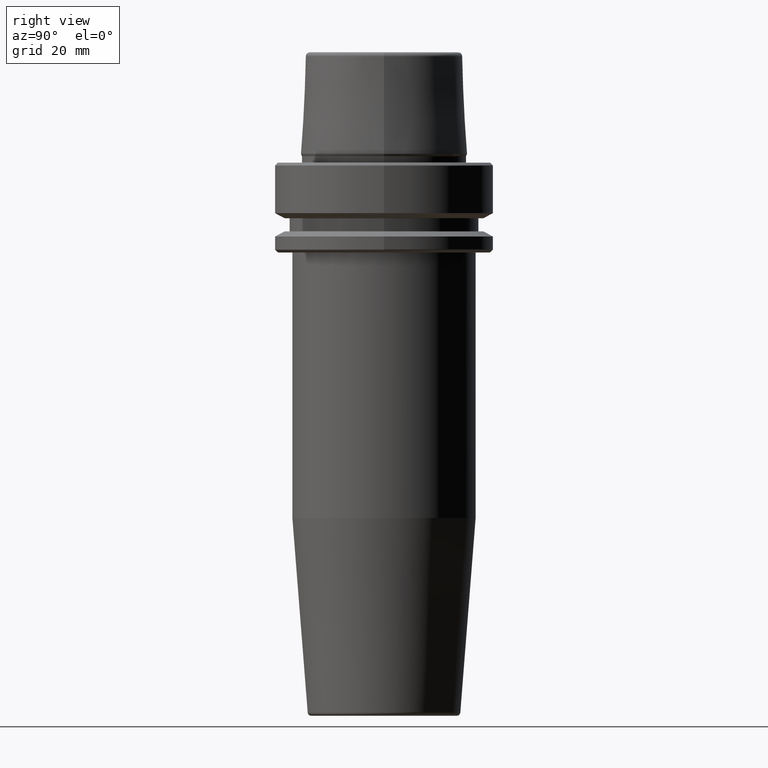
[diagram: clean part render]
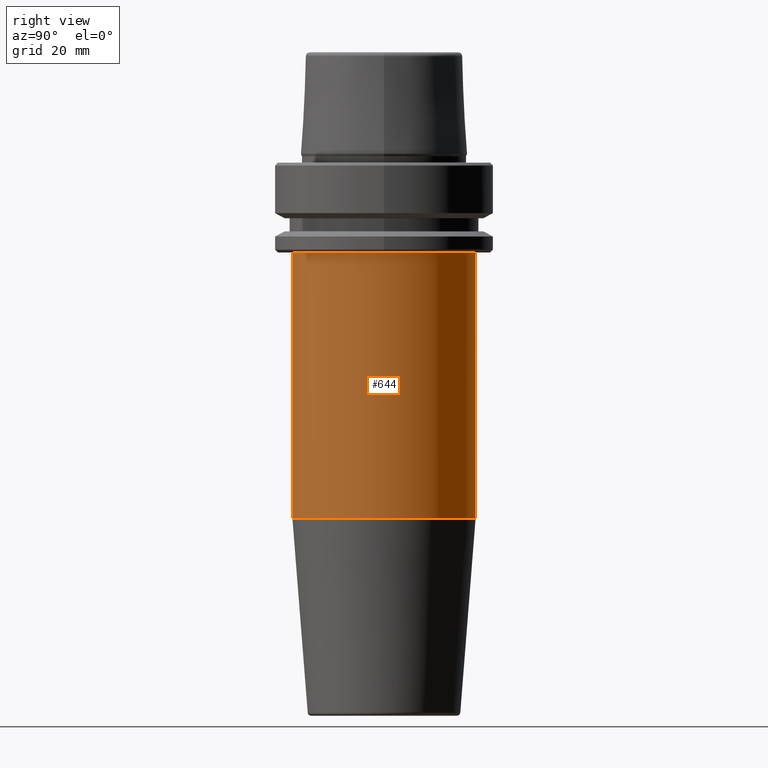
[diagram: same view with one face highlighted and labeled with its STEP entity id]
A machine part, right view. The second image highlights one B-rep face of the part: STEP entity #644.
In plain terms, the highlighted cylindrical surface (partial cylindrical patch) has radius 26.5 mm, axis along (-0, 0, -1).
Its self-contained STEP definition (entity closure, byte-faithful):
#3 = VERTEX_POINT ( 'NONE', #861 ) ;
#12 = FACE_OUTER_BOUND ( 'NONE', #712, .T. ) ;
#21 = DIRECTION ( 'NONE',  ( 0.0000000000000000000, 1.000000000000000000, 0.0000000000000000000 ) ) ;
#25 = CIRCLE ( 'NONE', #1028, 26.49999999999998200 ) ;
#58 = CYLINDRICAL_SURFACE ( 'NONE', #787, 26.49999999999998200 ) ;
#62 = CARTESIAN_POINT ( 'NONE',  ( 0.0000000000000000000, 26.49999999999998600, -160.0000000000000000 ) ) ;
#111 = CARTESIAN_POINT ( 'NONE',  ( 0.0000000000000000000, 2.808355605018980900E-015, -102.8220786872083700 ) ) ;
#150 = EDGE_CURVE ( 'NONE', #206, #391, #893, .T. ) ;
#157 = VERTEX_POINT ( 'NONE', #1254 ) ;
#206 = VERTEX_POINT ( 'NONE', #952 ) ;
#211 = ORIENTED_EDGE ( 'NONE', *, *, #1072, .F. ) ;
#233 = AXIS2_PLACEMENT_3D ( 'NONE', #111, #702, #21 ) ;
#308 = CIRCLE ( 'NONE', #233, 26.49999999999998200 ) ;
#391 = VERTEX_POINT ( 'NONE', #1236 ) ;
#425 = DIRECTION ( 'NONE',  ( -0.0000000000000000000, 3.655662087007025400E-017, -1.000000000000000000 ) ) ;
#465 = DIRECTION ( 'NONE',  ( 0.0000000000000000000, 0.0000000000000000000, -1.000000000000000000 ) ) ;
#531 = CARTESIAN_POINT ( 'NONE',  ( 0.0000000000000000000, 4.898587196589414600E-015, -160.0000000000000000 ) ) ;
#539 = ORIENTED_EDGE ( 'NONE', *, *, #150, .T. ) ;
#629 = DIRECTION ( 'NONE',  ( 0.0000000000000000000, 1.000000000000000000, 0.0000000000000000000 ) ) ;
#644 = ADVANCED_FACE ( 'NONE', ( #12 ), #58, .T. ) ;
#681 = LINE ( 'NONE', #62, #773 ) ;
#702 = DIRECTION ( 'NONE',  ( -0.0000000000000000000, 3.655662087007025400E-017, -1.000000000000000000 ) ) ;
#710 = CARTESIAN_POINT ( 'NONE',  ( 3.245314017740483800E-015, -26.49999999999997900, -160.0000000000000000 ) ) ;
#712 = EDGE_LOOP ( 'NONE', ( #942, #539, #1124, #211 ) ) ;
#773 = VECTOR ( 'NONE', #939, 1000.000000000000000 ) ;
#787 = AXIS2_PLACEMENT_3D ( 'NONE', #531, #425, #629 ) ;
#802 = EDGE_CURVE ( 'NONE', #157, #391, #308, .T. ) ;
#861 = CARTESIAN_POINT ( 'NONE',  ( 0.0000000000000000000, 26.49999999999998200, -25.99999999999999600 ) ) ;
#893 = LINE ( 'NONE', #710, #1136 ) ;
#939 = DIRECTION ( 'NONE',  ( -0.0000000000000000000, 3.655662087007025400E-017, -1.000000000000000000 ) ) ;
#942 = ORIENTED_EDGE ( 'NONE', *, *, #967, .T. ) ;
#952 = CARTESIAN_POINT ( 'NONE',  ( 3.245314017740483800E-015, -26.49999999999998200, -25.99999999999999600 ) ) ;
#967 = EDGE_CURVE ( 'NONE', #3, #206, #25, .T. ) ;
#1028 = AXIS2_PLACEMENT_3D ( 'NONE', #1149, #465, #1056 ) ;
#1056 = DIRECTION ( 'NONE',  ( 1.000000000000000000, 0.0000000000000000000, 0.0000000000000000000 ) ) ;
#1072 = EDGE_CURVE ( 'NONE', #3, #157, #681, .T. ) ;
#1124 = ORIENTED_EDGE ( 'NONE', *, *, #802, .F. ) ;
#1136 = VECTOR ( 'NONE', #1245, 1000.000000000000000 ) ;
#1149 = CARTESIAN_POINT ( 'NONE',  ( 0.0000000000000000000, 0.0000000000000000000, -25.99999999999999600 ) ) ;
#1236 = CARTESIAN_POINT ( 'NONE',  ( 0.0000000000000000000, -26.49999999999997500, -102.8220786872083700 ) ) ;
#1245 = DIRECTION ( 'NONE',  ( -0.0000000000000000000, 3.655662087007025400E-017, -1.000000000000000000 ) ) ;
#1254 = CARTESIAN_POINT ( 'NONE',  ( 3.245314017740483400E-015, 26.49999999999998200, -102.8220786872083700 ) ) ;